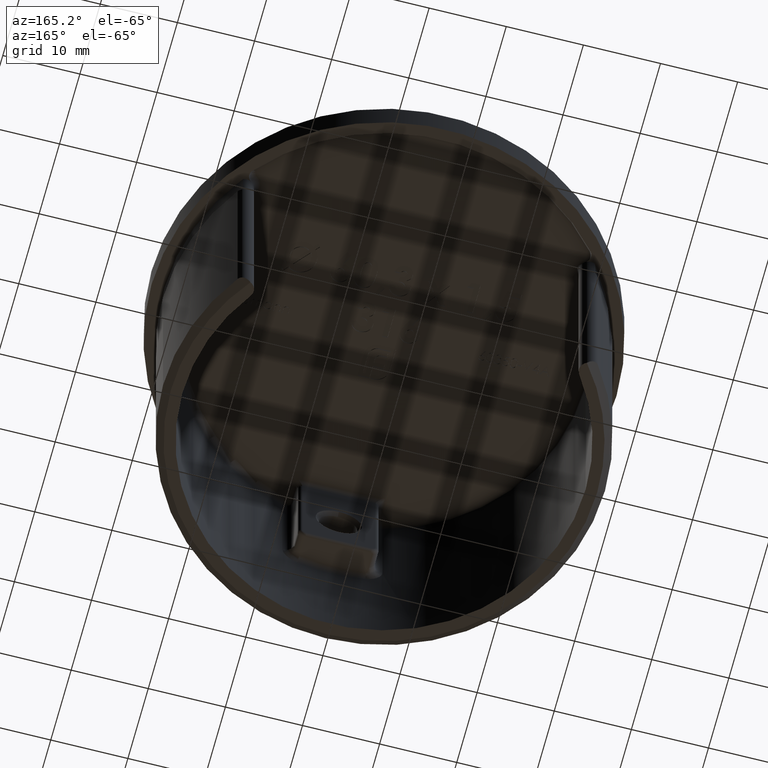
[diagram: clean part render]
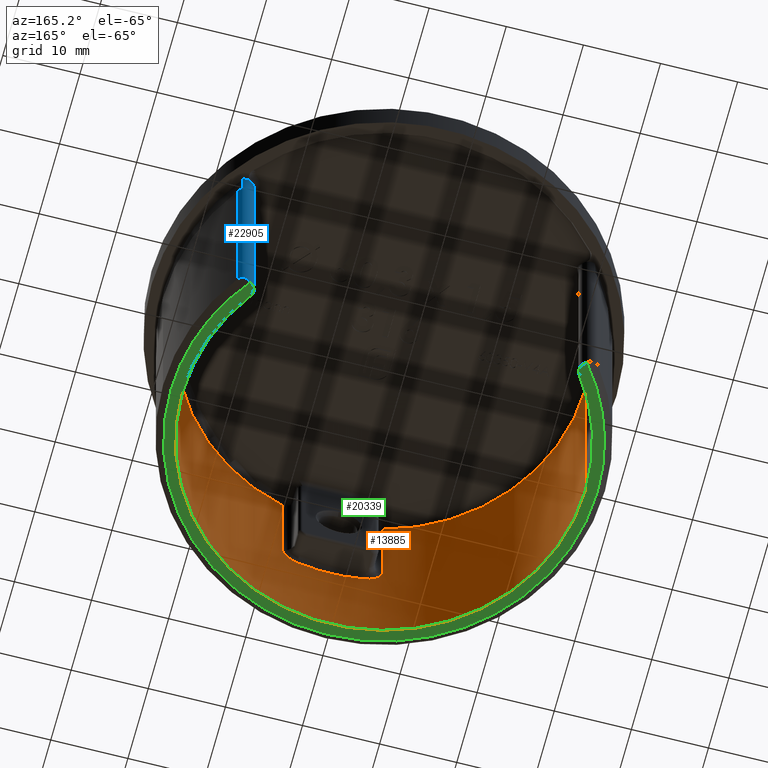
[diagram: same view with three faces highlighted in distinct colors, each labeled with its STEP entity id]
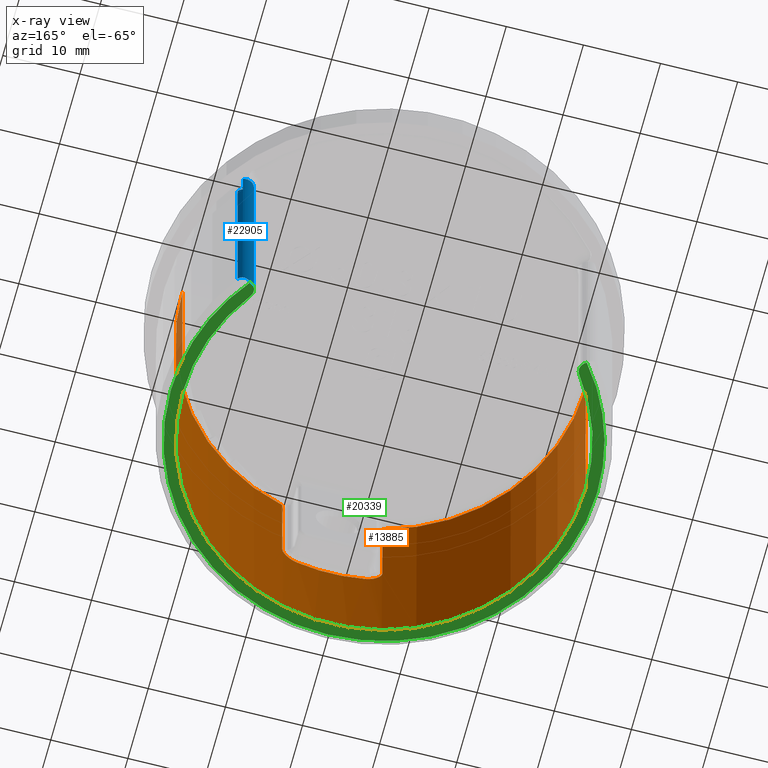
[diagram: x-ray of the same camera — body ghosted, the three highlighted faces saturated]
A machine part, auxiliary view with three faces highlighted in distinct colors.
The next image is the same camera in x-ray (body ghosted, the three faces saturated) — at least one of them is partly hidden behind the body in this view.
Their STEP definitions:

[orange] entity #13885 — the highlighted cylindrical surface (partial cylindrical patch) has radius 26.15 mm, axis along (-0, -0, 1).
#329 = CARTESIAN_POINT ( 'NONE',  ( 5.321693455084874458, -25.60308729636825120, -14.80631814081459829 ) ) ;
#414 = CARTESIAN_POINT ( 'NONE',  ( 5.771399944807144244, -25.50535937334958447, -14.52483631204000503 ) ) ;
#587 = VERTEX_POINT ( 'NONE', #2893 ) ;
#923 = ORIENTED_EDGE ( 'NONE', *, *, #5600, .F. ) ;
#990 = AXIS2_PLACEMENT_3D ( 'NONE', #16989, #9377, #9114 ) ;
#1218 = VERTEX_POINT ( 'NONE', #10828 ) ;
#1340 = ORIENTED_EDGE ( 'NONE', *, *, #23203, .T. ) ;
#1346 = VERTEX_POINT ( 'NONE', #18839 ) ;
#1478 = DIRECTION ( 'NONE',  ( 1.000000000000000000, 0.000000000000000000, 0.000000000000000000 ) ) ;
#1727 = CARTESIAN_POINT ( 'NONE',  ( -6.386024072850641886, -25.35831902327721821, -13.66243049270799403 ) ) ;
#1937 = VERTEX_POINT ( 'NONE', #25137 ) ;
#2310 = CARTESIAN_POINT ( 'NONE',  ( 5.439765740789273885, -25.57820619679539575, -14.74720896962391770 ) ) ;
#2548 = VERTEX_POINT ( 'NONE', #13078 ) ;
#2893 = CARTESIAN_POINT ( 'NONE',  ( -4.418986083499006234, -25.77392213059242820, -15.00000000000000000 ) ) ;
#2948 = CARTESIAN_POINT ( 'NONE',  ( 0.000000000000000000, 0.000000000000000000, -30.00000000000000000 ) ) ;
#3004 = VECTOR ( 'NONE', #16160, 1000.000000000000000 ) ;
#3006 = VERTEX_POINT ( 'NONE', #9874 ) ;
#3110 = B_SPLINE_CURVE_WITH_KNOTS ( 'NONE', 3,
 ( #15164, #25147, #11156, #19085, #20979, #21058, #9344, #23014, #11324, #1727, #3441, #3534, #22929, #22851 ),
 .UNSPECIFIED., .F., .F.,
 ( 4, 2, 2, 2, 2, 2, 4 ),
 ( 0.000000000000000000, 0.0008110006263816651583, 0.001622001252763330317, 0.002027501565954160836, 0.002433001879144991789, 0.002838502192335822308, 0.003244002505526653261 ),
 .UNSPECIFIED. ) ;
#3441 = CARTESIAN_POINT ( 'NONE',  ( -6.428334457234061716, -25.34758067760971301, -13.53229037010987490 ) ) ;
#3534 = CARTESIAN_POINT ( 'NONE',  ( -6.484173588257808873, -25.33335396230304326, -13.26996817464098477 ) ) ;
#3614 = LINE ( 'NONE', #18469, #18288 ) ;
#4643 = CARTESIAN_POINT ( 'NONE',  ( 26.14999999999999858, 0.000000000000000000, -30.00000000000000000 ) ) ;
#4829 = EDGE_CURVE ( 'NONE', #1346, #20588, #10059, .T. ) ;
#5208 = LINE ( 'NONE', #23266, #25376 ) ;
#5215 = DIRECTION ( 'NONE',  ( -0.000000000000000000, -0.000000000000000000, 1.000000000000000000 ) ) ;
#5308 = VERTEX_POINT ( 'NONE', #4643 ) ;
#5600 = EDGE_CURVE ( 'NONE', #5308, #16592, #12808, .T. ) ;
#5856 = VERTEX_POINT ( 'NONE', #10457 ) ;
#6075 = CARTESIAN_POINT ( 'NONE',  ( 6.053110085826907572, -25.43990526079814529, -14.24394067362304028 ) ) ;
#6164 = CARTESIAN_POINT ( 'NONE',  ( 6.498508946322069768, -25.32966406162095296, -13.27269886308176794 ) ) ;
#6233 = B_SPLINE_CURVE_WITH_KNOTS ( 'NONE', 3,
 ( #23845, #6164, #23932, #19824, #23764, #6075, #12069, #414, #16145, #2310, #329, #10175, #14111, #14029, #6408, #10012 ),
 .UNSPECIFIED., .F., .F.,
 ( 4, 2, 2, 2, 2, 2, 2, 4 ),
 ( 0.000000000000000000, 0.0008133980554969141461, 0.001220097083245370731, 0.001626796110993827208, 0.002033495138742283902, 0.002440194166490740162, 0.002846893194239196855, 0.003253592221987653115 ),
 .UNSPECIFIED. ) ;
#6408 = CARTESIAN_POINT ( 'NONE',  ( 4.553145861361708846, -25.75092019133240484, -15.00000000000000000 ) ) ;
#6500 = CIRCLE ( 'NONE', #21304, 26.14999999999999858 ) ;
#6881 = CARTESIAN_POINT ( 'NONE',  ( 6.498508946322070656, -25.32966406162095296, -30.00000000000000000 ) ) ;
#7561 = DIRECTION ( 'NONE',  ( -0.000000000000000000, -0.000000000000000000, 1.000000000000000000 ) ) ;
#8666 = CARTESIAN_POINT ( 'NONE',  ( 0.000000000000000000, 0.000000000000000000, 0.000000000000000000 ) ) ;
#9114 = DIRECTION ( 'NONE',  ( 1.000000000000000000, 0.000000000000000000, 0.000000000000000000 ) ) ;
#9344 = CARTESIAN_POINT ( 'NONE',  ( -6.055391218605230108, -25.43936193729074091, -14.24117560187288412 ) ) ;
#9377 = DIRECTION ( 'NONE',  ( 0.000000000000000000, 0.000000000000000000, 1.000000000000000000 ) ) ;
#9699 = CARTESIAN_POINT ( 'NONE',  ( 6.498508946322070656, -25.32966406162095296, 0.000000000000000000 ) ) ;
#9874 = CARTESIAN_POINT ( 'NONE',  ( 4.418986083499006234, -25.77392213059242820, -15.00000000000000000 ) ) ;
#10012 = CARTESIAN_POINT ( 'NONE',  ( 4.418986083499006234, -25.77392213059242820, -15.00000000000000000 ) ) ;
#10059 = LINE ( 'NONE', #6881, #21975 ) ;
#10175 = CARTESIAN_POINT ( 'NONE',  ( 5.073756392206853150, -25.65337202801781302, -14.90262251029058582 ) ) ;
#10184 = ORIENTED_EDGE ( 'NONE', *, *, #23427, .T. ) ;
#10457 = CARTESIAN_POINT ( 'NONE',  ( -6.498508946322068880, -25.32966406162094941, -12.99999999999999822 ) ) ;
#10745 = DIRECTION ( 'NONE',  ( -1.000000000000000000, 0.000000000000000000, 0.000000000000000000 ) ) ;
#10828 = CARTESIAN_POINT ( 'NONE',  ( -6.498508946322070656, -25.32966406162095296, 0.000000000000000000 ) ) ;
#10996 = EDGE_CURVE ( 'NONE', #20588, #16592, #24129, .T. ) ;
#11156 = CARTESIAN_POINT ( 'NONE',  ( -4.953347891270735381, -25.67780903307770046, -14.94962990282481741 ) ) ;
#11324 = CARTESIAN_POINT ( 'NONE',  ( -6.277163722149775360, -25.38548527703690993, -13.90773855937362669 ) ) ;
#12055 = EDGE_CURVE ( 'NONE', #587, #5856, #3110, .T. ) ;
#12069 = CARTESIAN_POINT ( 'NONE',  ( 5.965459691309692225, -25.46066976255712433, -14.34341771813983080 ) ) ;
#12236 = EDGE_CURVE ( 'NONE', #1218, #5856, #3614, .T. ) ;
#12616 = CARTESIAN_POINT ( 'NONE',  ( 26.14999999999999858, 0.000000000000000000, 0.000000000000000000 ) ) ;
#12683 = DIRECTION ( 'NONE',  ( 0.000000000000000000, 0.000000000000000000, -1.000000000000000000 ) ) ;
#12808 = LINE ( 'NONE', #15992, #3004 ) ;
#13078 = CARTESIAN_POINT ( 'NONE',  ( -26.14999999999999858, 3.202451379770328621E-15, -30.00000000000000000 ) ) ;
#13179 = CARTESIAN_POINT ( 'NONE',  ( 0.000000000000000000, 0.000000000000000000, 0.000000000000000000 ) ) ;
#13187 = EDGE_LOOP ( 'NONE', ( #15449, #18218, #10184, #23626, #20078, #1340, #14841, #23082, #14070, #923 ) ) ;
#13885 = ADVANCED_FACE ( 'NONE', ( #15510 ), #19186, .F. ) ;
#14029 = CARTESIAN_POINT ( 'NONE',  ( 4.685116263424392358, -25.72721606063047162, -14.98763133182538887 ) ) ;
#14054 = CIRCLE ( 'NONE', #990, 26.14999999999999858 ) ;
#14070 = ORIENTED_EDGE ( 'NONE', *, *, #10996, .T. ) ;
#14111 = CARTESIAN_POINT ( 'NONE',  ( 4.944875000276489629, -25.67855470745591617, -14.93916953289828697 ) ) ;
#14227 = DIRECTION ( 'NONE',  ( -0.000000000000000000, -0.000000000000000000, 1.000000000000000000 ) ) ;
#14504 = DIRECTION ( 'NONE',  ( -0.000000000000000000, -0.000000000000000000, 1.000000000000000000 ) ) ;
#14841 = ORIENTED_EDGE ( 'NONE', *, *, #23724, .F. ) ;
#15093 = CARTESIAN_POINT ( 'NONE',  ( 0.000000000000000000, 0.000000000000000000, -30.00000000000000000 ) ) ;
#15164 = CARTESIAN_POINT ( 'NONE',  ( -4.418986083499006234, -25.77392213059242820, -15.00000000000000000 ) ) ;
#15449 = ORIENTED_EDGE ( 'NONE', *, *, #20439, .F. ) ;
#15510 = FACE_OUTER_BOUND ( 'NONE', #13187, .T. ) ;
#15992 = CARTESIAN_POINT ( 'NONE',  ( 26.14999999999999858, 0.000000000000000000, -30.00000000000000000 ) ) ;
#16145 = CARTESIAN_POINT ( 'NONE',  ( 5.664169762854617041, -25.52945092355122725, -14.60698308722433403 ) ) ;
#16160 = DIRECTION ( 'NONE',  ( -0.000000000000000000, -0.000000000000000000, 1.000000000000000000 ) ) ;
#16592 = VERTEX_POINT ( 'NONE', #12616 ) ;
#16989 = CARTESIAN_POINT ( 'NONE',  ( 0.000000000000000000, 0.000000000000000000, -15.00000000000000000 ) ) ;
#17264 = DIRECTION ( 'NONE',  ( -1.000000000000000000, 8.881784197001252323E-16, 0.000000000000000000 ) ) ;
#17852 = DIRECTION ( 'NONE',  ( -0.000000000000000000, -0.000000000000000000, 1.000000000000000000 ) ) ;
#18048 = DIRECTION ( 'NONE',  ( -1.000000000000000000, 0.000000000000000000, 0.000000000000000000 ) ) ;
#18218 = ORIENTED_EDGE ( 'NONE', *, *, #22390, .T. ) ;
#18288 = VECTOR ( 'NONE', #12683, 1000.000000000000000 ) ;
#18469 = CARTESIAN_POINT ( 'NONE',  ( -6.498508946322070656, -25.32966406162095296, -30.00000000000000000 ) ) ;
#18839 = CARTESIAN_POINT ( 'NONE',  ( 6.498508946322068880, -25.32966406162094941, -12.99999999999999822 ) ) ;
#19085 = CARTESIAN_POINT ( 'NONE',  ( -5.445446288520122913, -25.57797190533301901, -14.75801011108733540 ) ) ;
#19186 = CYLINDRICAL_SURFACE ( 'NONE', #22662, 26.14999999999999858 ) ;
#19824 = CARTESIAN_POINT ( 'NONE',  ( 6.276636818364639048, -25.38561519724846960, -13.90864012884661172 ) ) ;
#20078 = ORIENTED_EDGE ( 'NONE', *, *, #12055, .F. ) ;
#20439 = EDGE_CURVE ( 'NONE', #2548, #5308, #6500, .T. ) ;
#20588 = VERTEX_POINT ( 'NONE', #9699 ) ;
#20646 = DIRECTION ( 'NONE',  ( -0.000000000000000000, -0.000000000000000000, 1.000000000000000000 ) ) ;
#20979 = CARTESIAN_POINT ( 'NONE',  ( -5.675920801168317986, -25.52735484748875905, -14.61433237519771389 ) ) ;
#21058 = CARTESIAN_POINT ( 'NONE',  ( -5.966148158617001762, -25.46050729585168426, -14.34265496117061112 ) ) ;
#21304 = AXIS2_PLACEMENT_3D ( 'NONE', #2948, #20646, #10745 ) ;
#21630 = AXIS2_PLACEMENT_3D ( 'NONE', #8666, #14227, #18048 ) ;
#21975 = VECTOR ( 'NONE', #14504, 1000.000000000000000 ) ;
#22390 = EDGE_CURVE ( 'NONE', #2548, #1937, #5208, .T. ) ;
#22662 = AXIS2_PLACEMENT_3D ( 'NONE', #15093, #7561, #1478 ) ;
#22851 = CARTESIAN_POINT ( 'NONE',  ( -6.498508946322068880, -25.32966406162094941, -12.99999999999999822 ) ) ;
#22929 = CARTESIAN_POINT ( 'NONE',  ( -6.498508946322068880, -25.32966406162095652, -13.13630565445874687 ) ) ;
#23014 = CARTESIAN_POINT ( 'NONE',  ( -6.210911183985611039, -25.40184010758827071, -14.02339703429536755 ) ) ;
#23082 = ORIENTED_EDGE ( 'NONE', *, *, #4829, .T. ) ;
#23203 = EDGE_CURVE ( 'NONE', #587, #3006, #14054, .T. ) ;
#23266 = CARTESIAN_POINT ( 'NONE',  ( -26.14999999999999858, 3.202451379770328621E-15, -30.00000000000000000 ) ) ;
#23427 = EDGE_CURVE ( 'NONE', #1937, #1218, #23833, .T. ) ;
#23626 = ORIENTED_EDGE ( 'NONE', *, *, #12236, .T. ) ;
#23724 = EDGE_CURVE ( 'NONE', #1346, #3006, #6233, .T. ) ;
#23764 = CARTESIAN_POINT ( 'NONE',  ( 6.208910083950652137, -25.40232975455086617, -14.02661682867702098 ) ) ;
#23833 = CIRCLE ( 'NONE', #21630, 26.14999999999999858 ) ;
#23845 = CARTESIAN_POINT ( 'NONE',  ( 6.498508946322068880, -25.32966406162094941, -12.99999999999999822 ) ) ;
#23932 = CARTESIAN_POINT ( 'NONE',  ( 6.439449022655334254, -25.34498986100245688, -13.54260779418224381 ) ) ;
#24107 = AXIS2_PLACEMENT_3D ( 'NONE', #13179, #5215, #17264 ) ;
#24129 = CIRCLE ( 'NONE', #24107, 26.14999999999999858 ) ;
#25137 = CARTESIAN_POINT ( 'NONE',  ( -26.14999999999999858, 3.202451379770328621E-15, 0.000000000000000000 ) ) ;
#25147 = CARTESIAN_POINT ( 'NONE',  ( -4.687230521686974960, -25.72793113111153573, -15.00000000000000178 ) ) ;
#25376 = VECTOR ( 'NONE', #17852, 1000.000000000000000 ) ;

[blue] entity #22905 — the highlighted cylindrical surface (edge-blend (fillet) strip) has radius 1.25 mm, axis along (-0, -0, 1).
#489 = CIRCLE ( 'NONE', #24447, 1.250000000000001110 ) ;
#667 = EDGE_CURVE ( 'NONE', #8682, #3171, #7100, .T. ) ;
#696 = VERTEX_POINT ( 'NONE', #6986 ) ;
#931 = VECTOR ( 'NONE', #7532, 1000.000000000000000 ) ;
#1021 = CARTESIAN_POINT ( 'NONE',  ( 22.43186470367863095, 17.12115079564621922, -29.43101298020945578 ) ) ;
#1041 = CARTESIAN_POINT ( 'NONE',  ( 21.08859141806065196, 15.86654762249642125, 0.000000000000000000 ) ) ;
#2099 = EDGE_LOOP ( 'NONE', ( #8246, #13799, #14457, #25373, #21835, #3209, #18293, #9206, #11142 ) ) ;
#2226 = EDGE_CURVE ( 'NONE', #22647, #9663, #3393, .T. ) ;
#2238 = CARTESIAN_POINT ( 'NONE',  ( 23.35768774187729235, 16.59038647388767984, -28.99999999999997868 ) ) ;
#3084 = CARTESIAN_POINT ( 'NONE',  ( 22.04078701128144502, 17.08735385880723712, -29.76147440749055306 ) ) ;
#3154 = CIRCLE ( 'NONE', #20470, 1.250000000000001110 ) ;
#3171 = VERTEX_POINT ( 'NONE', #1041 ) ;
#3209 = ORIENTED_EDGE ( 'NONE', *, *, #22686, .T. ) ;
#3393 = LINE ( 'NONE', #21292, #931 ) ;
#3758 = DIRECTION ( 'NONE',  ( 0.000000000000000000, 0.000000000000000000, -1.000000000000000000 ) ) ;
#3933 = EDGE_CURVE ( 'NONE', #3171, #12473, #11335, .T. ) ;
#4093 = DIRECTION ( 'NONE',  ( 1.000000000000000000, 0.000000000000000000, 0.000000000000000000 ) ) ;
#4276 = VECTOR ( 'NONE', #6712, 1000.000000000000000 ) ;
#4889 = CYLINDRICAL_SURFACE ( 'NONE', #9846, 1.250000000000001110 ) ;
#5672 = VERTEX_POINT ( 'NONE', #2238 ) ;
#5799 = CIRCLE ( 'NONE', #25075, 1.250000000000001110 ) ;
#6401 = CARTESIAN_POINT ( 'NONE',  ( 22.78761868766939003, 17.03311288477184249, 0.000000000000000000 ) ) ;
#6712 = DIRECTION ( 'NONE',  ( -0.000000000000000000, -0.000000000000000000, 1.000000000000000000 ) ) ;
#6756 = CARTESIAN_POINT ( 'NONE',  ( 23.35768774187729235, 16.59038647388767984, -28.99999999999997868 ) ) ;
#6986 = CARTESIAN_POINT ( 'NONE',  ( 21.80782859135647556, 16.99826791558521677, -30.00000000000000000 ) ) ;
#7100 = CIRCLE ( 'NONE', #12767, 1.250000000000001110 ) ;
#7532 = DIRECTION ( 'NONE',  ( 0.000000000000000000, 0.000000000000000000, -1.000000000000000000 ) ) ;
#8169 = DIRECTION ( 'NONE',  ( 1.000000000000000000, 0.000000000000000000, 0.000000000000000000 ) ) ;
#8246 = ORIENTED_EDGE ( 'NONE', *, *, #9045, .T. ) ;
#8412 = CARTESIAN_POINT ( 'NONE',  ( 22.33859141806065196, 15.86654762249642125, -30.00000000000000000 ) ) ;
#8682 = VERTEX_POINT ( 'NONE', #19297 ) ;
#8810 = CARTESIAN_POINT ( 'NONE',  ( 21.80782859135647556, 16.99826791558521677, -30.00000000000000000 ) ) ;
#8941 = CARTESIAN_POINT ( 'NONE',  ( 21.31949509424401512, 15.14270877110516444, -30.00000000000000000 ) ) ;
#9045 = EDGE_CURVE ( 'NONE', #24388, #8682, #9817, .T. ) ;
#9206 = ORIENTED_EDGE ( 'NONE', *, *, #16997, .T. ) ;
#9207 = DIRECTION ( 'NONE',  ( 0.000000000000000000, 0.000000000000000000, -1.000000000000000000 ) ) ;
#9294 = DIRECTION ( 'NONE',  ( -1.000000000000000000, 0.000000000000000000, 0.000000000000000000 ) ) ;
#9663 = VERTEX_POINT ( 'NONE', #11979 ) ;
#9673 = DIRECTION ( 'NONE',  ( 0.000000000000000000, 0.000000000000000000, 1.000000000000000000 ) ) ;
#9817 = LINE ( 'NONE', #8941, #4276 ) ;
#9846 = AXIS2_PLACEMENT_3D ( 'NONE', #23499, #19798, #8169 ) ;
#10010 = B_SPLINE_CURVE_WITH_KNOTS ( 'NONE', 3,
 ( #6756, #14201, #18109, #12321, #16317, #16237, #22154, #18730, #22741, #1021, #24616, #3084, #18813, #8810 ),
 .UNSPECIFIED., .F., .F.,
 ( 4, 2, 2, 2, 2, 2, 4 ),
 ( 0.000000000000000000, 0.0002560582088586445520, 0.0005121164177172891040, 0.0007681746265759336560, 0.001024232835434578208, 0.001536349253151863192, 0.002048465670869148176 ),
 .UNSPECIFIED. ) ;
#10203 = CARTESIAN_POINT ( 'NONE',  ( 23.35768774187728880, 16.59038647388767629, -3.000000000000001332 ) ) ;
#10387 = DIRECTION ( 'NONE',  ( -0.000000000000000000, 0.000000000000000000, -1.000000000000000000 ) ) ;
#11034 = FACE_OUTER_BOUND ( 'NONE', #2099, .T. ) ;
#11142 = ORIENTED_EDGE ( 'NONE', *, *, #20400, .F. ) ;
#11335 = CIRCLE ( 'NONE', #15682, 1.250000000000001110 ) ;
#11795 = VERTEX_POINT ( 'NONE', #10203 ) ;
#11979 = CARTESIAN_POINT ( 'NONE',  ( 22.78761868766939003, 17.03311288477184249, -3.000000000000001776 ) ) ;
#12321 = CARTESIAN_POINT ( 'NONE',  ( 23.12787258066923002, 16.83949113738760417, -29.04125770827446829 ) ) ;
#12458 = EDGE_CURVE ( 'NONE', #5672, #11795, #24405, .T. ) ;
#12473 = VERTEX_POINT ( 'NONE', #17515 ) ;
#12767 = AXIS2_PLACEMENT_3D ( 'NONE', #13245, #9207, #9294 ) ;
#12799 = DIRECTION ( 'NONE',  ( -1.000000000000000000, 0.000000000000000000, 0.000000000000000000 ) ) ;
#13245 = CARTESIAN_POINT ( 'NONE',  ( 22.33859141806065196, 15.86654762249642125, 0.000000000000000000 ) ) ;
#13799 = ORIENTED_EDGE ( 'NONE', *, *, #667, .T. ) ;
#14201 = CARTESIAN_POINT ( 'NONE',  ( 23.30740983559775259, 16.66117298853827933, -28.99999999999998579 ) ) ;
#14287 = EDGE_CURVE ( 'NONE', #22647, #12473, #489, .T. ) ;
#14327 = VECTOR ( 'NONE', #17597, 1000.000000000000000 ) ;
#14457 = ORIENTED_EDGE ( 'NONE', *, *, #3933, .T. ) ;
#14669 = DIRECTION ( 'NONE',  ( 0.000000000000000000, 0.000000000000000000, -1.000000000000000000 ) ) ;
#15682 = AXIS2_PLACEMENT_3D ( 'NONE', #18594, #14669, #12799 ) ;
#16237 = CARTESIAN_POINT ( 'NONE',  ( 22.92415593883044167, 16.97381428085802924, -29.12594383252809038 ) ) ;
#16317 = CARTESIAN_POINT ( 'NONE',  ( 23.06078776809093256, 16.88995257299576735, -29.06565264171322127 ) ) ;
#16997 = EDGE_CURVE ( 'NONE', #5672, #696, #10010, .T. ) ;
#17515 = CARTESIAN_POINT ( 'NONE',  ( 21.68846791818547715, 16.93418025357047085, 0.000000000000000000 ) ) ;
#17519 = CARTESIAN_POINT ( 'NONE',  ( 22.33859141806065196, 15.86654762249642125, 0.000000000000000000 ) ) ;
#17597 = DIRECTION ( 'NONE',  ( -0.000000000000000000, -0.000000000000000000, 1.000000000000000000 ) ) ;
#18109 = CARTESIAN_POINT ( 'NONE',  ( 23.25117819166765898, 16.72490024086204130, -29.00854823847076247 ) ) ;
#18293 = ORIENTED_EDGE ( 'NONE', *, *, #12458, .F. ) ;
#18594 = CARTESIAN_POINT ( 'NONE',  ( 22.33859141806065196, 15.86654762249642125, 0.000000000000000000 ) ) ;
#18730 = CARTESIAN_POINT ( 'NONE',  ( 22.71168627853626987, 17.06195711650276436, -29.24353928765772537 ) ) ;
#18813 = CARTESIAN_POINT ( 'NONE',  ( 21.91946110212149534, 17.05062218309301159, -29.87976873325106908 ) ) ;
#19297 = CARTESIAN_POINT ( 'NONE',  ( 21.31949509424401512, 15.14270877110516444, 0.000000000000000000 ) ) ;
#19798 = DIRECTION ( 'NONE',  ( -0.000000000000000000, -0.000000000000000000, 1.000000000000000000 ) ) ;
#20400 = EDGE_CURVE ( 'NONE', #24388, #696, #3154, .T. ) ;
#20470 = AXIS2_PLACEMENT_3D ( 'NONE', #8412, #10387, #24055 ) ;
#21292 = CARTESIAN_POINT ( 'NONE',  ( 22.78761868766939003, 17.03311288477183894, -1.500000000000001554 ) ) ;
#21454 = DIRECTION ( 'NONE',  ( -1.000000000000000000, 0.000000000000000000, 0.000000000000000000 ) ) ;
#21835 = ORIENTED_EDGE ( 'NONE', *, *, #2226, .T. ) ;
#22154 = CARTESIAN_POINT ( 'NONE',  ( 22.85289529952519416, 17.00834232855541117, -29.16255595392588162 ) ) ;
#22647 = VERTEX_POINT ( 'NONE', #6401 ) ;
#22686 = EDGE_CURVE ( 'NONE', #9663, #11795, #5799, .T. ) ;
#22741 = CARTESIAN_POINT ( 'NONE',  ( 22.64146852191919734, 17.08138206262814407, -29.28793153803029981 ) ) ;
#22905 = ADVANCED_FACE ( 'NONE', ( #11034 ), #4889, .T. ) ;
#23163 = CARTESIAN_POINT ( 'NONE',  ( 22.33859141806065196, 15.86654762249642125, -3.000000000000002665 ) ) ;
#23499 = CARTESIAN_POINT ( 'NONE',  ( 22.33859141806065196, 15.86654762249642125, -30.00000000000000000 ) ) ;
#23664 = CARTESIAN_POINT ( 'NONE',  ( 23.35768774187729235, 16.59038647388767984, -30.00000000000000000 ) ) ;
#24055 = DIRECTION ( 'NONE',  ( 1.000000000000000000, 0.000000000000000000, 0.000000000000000000 ) ) ;
#24388 = VERTEX_POINT ( 'NONE', #24743 ) ;
#24405 = LINE ( 'NONE', #23664, #14327 ) ;
#24447 = AXIS2_PLACEMENT_3D ( 'NONE', #17519, #9673, #4093 ) ;
#24616 = CARTESIAN_POINT ( 'NONE',  ( 22.29572157725544201, 17.12242082790445608, -29.53821596892797885 ) ) ;
#24743 = CARTESIAN_POINT ( 'NONE',  ( 21.31949509424401512, 15.14270877110516444, -30.00000000000000000 ) ) ;
#25075 = AXIS2_PLACEMENT_3D ( 'NONE', #23163, #3758, #21454 ) ;
#25373 = ORIENTED_EDGE ( 'NONE', *, *, #14287, .F. ) ;

[green] entity #20339 — the highlighted planar face has unit normal (0, 0, -1).
#365 = DIRECTION ( 'NONE',  ( 0.000000000000000000, 0.000000000000000000, -1.000000000000000000 ) ) ;
#696 = VERTEX_POINT ( 'NONE', #6986 ) ;
#1647 = AXIS2_PLACEMENT_3D ( 'NONE', #9134, #11030, #14955 ) ;
#1842 = ORIENTED_EDGE ( 'NONE', *, *, #18088, .T. ) ;
#2005 = DIRECTION ( 'NONE',  ( -0.000000000000000000, -0.000000000000000000, 1.000000000000000000 ) ) ;
#2548 = VERTEX_POINT ( 'NONE', #13078 ) ;
#2600 = CARTESIAN_POINT ( 'NONE',  ( -11.16929570903032598, 7.933273811248210627, -30.00000000000000000 ) ) ;
#2602 = AXIS2_PLACEMENT_3D ( 'NONE', #19107, #7390, #21071 ) ;
#2620 = CIRCLE ( 'NONE', #7926, 27.64999999999997726 ) ;
#2948 = CARTESIAN_POINT ( 'NONE',  ( 0.000000000000000000, 0.000000000000000000, -30.00000000000000000 ) ) ;
#3154 = CIRCLE ( 'NONE', #20470, 1.250000000000001110 ) ;
#3263 = AXIS2_PLACEMENT_3D ( 'NONE', #17547, #19512, #17625 ) ;
#3958 = CARTESIAN_POINT ( 'NONE',  ( 0.000000000000000000, 0.000000000000000000, -30.00000000000000000 ) ) ;
#4478 = CARTESIAN_POINT ( 'NONE',  ( 0.000000000000000000, 0.000000000000000000, -30.00000000000000000 ) ) ;
#4643 = CARTESIAN_POINT ( 'NONE',  ( 26.14999999999999858, 0.000000000000000000, -30.00000000000000000 ) ) ;
#5118 = EDGE_CURVE ( 'NONE', #24102, #2548, #7297, .T. ) ;
#5308 = VERTEX_POINT ( 'NONE', #4643 ) ;
#5777 = DIRECTION ( 'NONE',  ( -1.000000000000000000, 0.000000000000000000, 0.000000000000000000 ) ) ;
#5928 = CIRCLE ( 'NONE', #2602, 27.64999999999997726 ) ;
#6500 = CIRCLE ( 'NONE', #21304, 26.14999999999999858 ) ;
#6555 = CARTESIAN_POINT ( 'NONE',  ( -21.80782859135647556, 16.99826791558521677, -30.00000000000000000 ) ) ;
#6751 = EDGE_CURVE ( 'NONE', #5308, #24388, #22556, .T. ) ;
#6986 = CARTESIAN_POINT ( 'NONE',  ( 21.80782859135647556, 16.99826791558521677, -30.00000000000000000 ) ) ;
#7297 = CIRCLE ( 'NONE', #3263, 26.14999999999999858 ) ;
#7390 = DIRECTION ( 'NONE',  ( 0.000000000000000000, 0.000000000000000000, -1.000000000000000000 ) ) ;
#7452 = AXIS2_PLACEMENT_3D ( 'NONE', #16057, #14192, #21872 ) ;
#7453 = ORIENTED_EDGE ( 'NONE', *, *, #19371, .T. ) ;
#7549 = DIRECTION ( 'NONE',  ( 0.000000000000000000, 0.000000000000000000, -1.000000000000000000 ) ) ;
#7628 = EDGE_CURVE ( 'NONE', #8086, #24102, #8762, .T. ) ;
#7926 = AXIS2_PLACEMENT_3D ( 'NONE', #4478, #10470, #8488 ) ;
#8086 = VERTEX_POINT ( 'NONE', #17310 ) ;
#8412 = CARTESIAN_POINT ( 'NONE',  ( 22.33859141806065196, 15.86654762249642125, -30.00000000000000000 ) ) ;
#8488 = DIRECTION ( 'NONE',  ( -1.000000000000000000, 0.000000000000000000, 0.000000000000000000 ) ) ;
#8762 = CIRCLE ( 'NONE', #1647, 1.250000000000001110 ) ;
#9134 = CARTESIAN_POINT ( 'NONE',  ( -22.33859141806065196, 15.86654762249642125, -30.00000000000000000 ) ) ;
#9271 = ORIENTED_EDGE ( 'NONE', *, *, #16455, .T. ) ;
#9343 = CARTESIAN_POINT ( 'NONE',  ( 0.000000000000000000, 0.000000000000000000, -30.00000000000000000 ) ) ;
#9889 = EDGE_LOOP ( 'NONE', ( #23074, #9271, #7453, #18476, #1842, #18571, #10540, #19039, #19286 ) ) ;
#10387 = DIRECTION ( 'NONE',  ( -0.000000000000000000, 0.000000000000000000, -1.000000000000000000 ) ) ;
#10470 = DIRECTION ( 'NONE',  ( 0.000000000000000000, 0.000000000000000000, -1.000000000000000000 ) ) ;
#10540 = ORIENTED_EDGE ( 'NONE', *, *, #5118, .T. ) ;
#10745 = DIRECTION ( 'NONE',  ( -1.000000000000000000, 0.000000000000000000, 0.000000000000000000 ) ) ;
#11030 = DIRECTION ( 'NONE',  ( 0.000000000000000000, 0.000000000000000000, -1.000000000000000000 ) ) ;
#11320 = AXIS2_PLACEMENT_3D ( 'NONE', #2600, #365, #16268 ) ;
#11407 = DIRECTION ( 'NONE',  ( -1.000000000000000000, 0.000000000000000000, 0.000000000000000000 ) ) ;
#11426 = VERTEX_POINT ( 'NONE', #6555 ) ;
#12893 = VERTEX_POINT ( 'NONE', #24223 ) ;
#13078 = CARTESIAN_POINT ( 'NONE',  ( -26.14999999999999858, 3.202451379770328621E-15, -30.00000000000000000 ) ) ;
#14192 = DIRECTION ( 'NONE',  ( 0.000000000000000000, 0.000000000000000000, -1.000000000000000000 ) ) ;
#14955 = DIRECTION ( 'NONE',  ( -1.000000000000000000, 0.000000000000000000, 0.000000000000000000 ) ) ;
#15391 = EDGE_CURVE ( 'NONE', #12893, #11426, #17889, .T. ) ;
#15780 = CARTESIAN_POINT ( 'NONE',  ( 27.64999999999998082, 0.000000000000000000, -30.00000000000000000 ) ) ;
#16057 = CARTESIAN_POINT ( 'NONE',  ( -22.33859141806065196, 15.86654762249642125, -30.00000000000000000 ) ) ;
#16268 = DIRECTION ( 'NONE',  ( -1.000000000000000000, 0.000000000000000000, -0.000000000000000000 ) ) ;
#16455 = EDGE_CURVE ( 'NONE', #696, #18391, #2620, .T. ) ;
#17310 = CARTESIAN_POINT ( 'NONE',  ( -21.08859141806065196, 15.86654762249642125, -30.00000000000000000 ) ) ;
#17547 = CARTESIAN_POINT ( 'NONE',  ( 0.000000000000000000, 0.000000000000000000, -30.00000000000000000 ) ) ;
#17625 = DIRECTION ( 'NONE',  ( -1.000000000000000000, 0.000000000000000000, 0.000000000000000000 ) ) ;
#17889 = CIRCLE ( 'NONE', #23331, 27.64999999999997726 ) ;
#18088 = EDGE_CURVE ( 'NONE', #11426, #8086, #20004, .T. ) ;
#18391 = VERTEX_POINT ( 'NONE', #15780 ) ;
#18476 = ORIENTED_EDGE ( 'NONE', *, *, #15391, .T. ) ;
#18571 = ORIENTED_EDGE ( 'NONE', *, *, #7628, .T. ) ;
#19039 = ORIENTED_EDGE ( 'NONE', *, *, #20439, .T. ) ;
#19107 = CARTESIAN_POINT ( 'NONE',  ( 0.000000000000000000, 0.000000000000000000, -30.00000000000000000 ) ) ;
#19286 = ORIENTED_EDGE ( 'NONE', *, *, #6751, .T. ) ;
#19371 = EDGE_CURVE ( 'NONE', #18391, #12893, #5928, .T. ) ;
#19512 = DIRECTION ( 'NONE',  ( -0.000000000000000000, -0.000000000000000000, 1.000000000000000000 ) ) ;
#20004 = CIRCLE ( 'NONE', #7452, 1.250000000000001110 ) ;
#20206 = PLANE ( 'NONE',  #11320 ) ;
#20339 = ADVANCED_FACE ( 'NONE', ( #24240 ), #20206, .T. ) ;
#20400 = EDGE_CURVE ( 'NONE', #24388, #696, #3154, .T. ) ;
#20439 = EDGE_CURVE ( 'NONE', #2548, #5308, #6500, .T. ) ;
#20470 = AXIS2_PLACEMENT_3D ( 'NONE', #8412, #10387, #24055 ) ;
#20646 = DIRECTION ( 'NONE',  ( -0.000000000000000000, -0.000000000000000000, 1.000000000000000000 ) ) ;
#21071 = DIRECTION ( 'NONE',  ( -1.000000000000000000, 0.000000000000000000, 0.000000000000000000 ) ) ;
#21304 = AXIS2_PLACEMENT_3D ( 'NONE', #2948, #20646, #10745 ) ;
#21872 = DIRECTION ( 'NONE',  ( -1.000000000000000000, 0.000000000000000000, 0.000000000000000000 ) ) ;
#22556 = CIRCLE ( 'NONE', #24896, 26.14999999999999858 ) ;
#23074 = ORIENTED_EDGE ( 'NONE', *, *, #20400, .T. ) ;
#23331 = AXIS2_PLACEMENT_3D ( 'NONE', #9343, #7549, #11407 ) ;
#23495 = CARTESIAN_POINT ( 'NONE',  ( -21.31949509424402578, 15.14270877110515379, -30.00000000000000000 ) ) ;
#24055 = DIRECTION ( 'NONE',  ( 1.000000000000000000, 0.000000000000000000, 0.000000000000000000 ) ) ;
#24102 = VERTEX_POINT ( 'NONE', #23495 ) ;
#24223 = CARTESIAN_POINT ( 'NONE',  ( -27.64999999999998082, 3.447380739599819033E-15, -30.00000000000000000 ) ) ;
#24240 = FACE_OUTER_BOUND ( 'NONE', #9889, .T. ) ;
#24388 = VERTEX_POINT ( 'NONE', #24743 ) ;
#24743 = CARTESIAN_POINT ( 'NONE',  ( 21.31949509424401512, 15.14270877110516444, -30.00000000000000000 ) ) ;
#24896 = AXIS2_PLACEMENT_3D ( 'NONE', #3958, #2005, #5777 ) ;